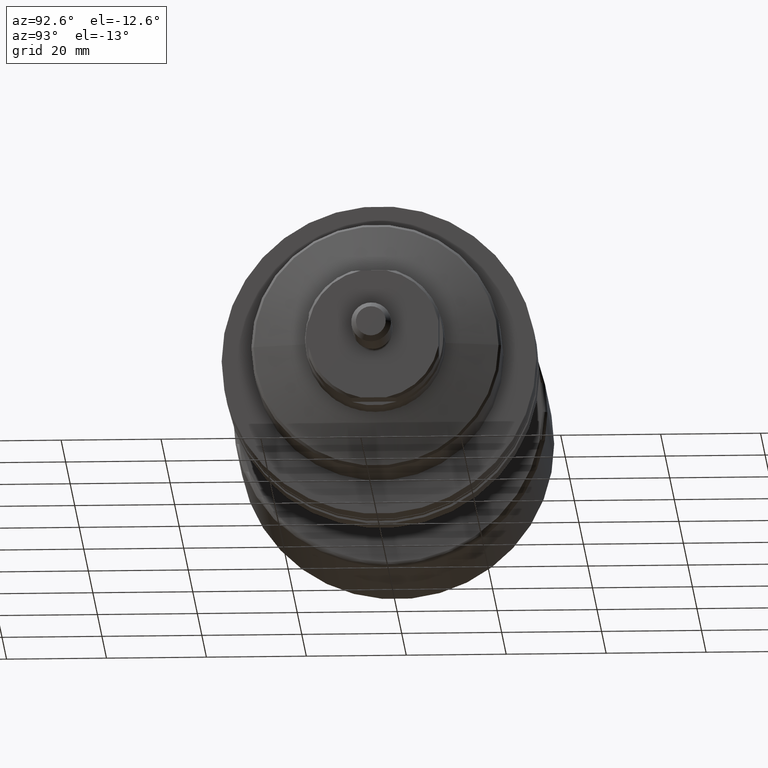
[diagram: clean part render]
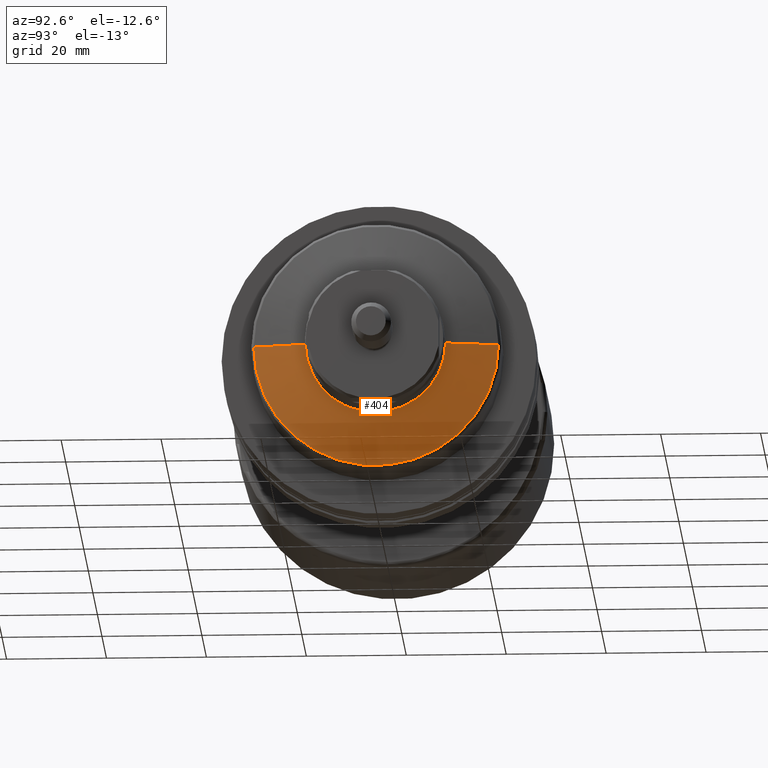
[diagram: same view with one face highlighted and labeled with its STEP entity id]
A machine part, auxiliary view. The second image highlights one B-rep face of the part: STEP entity #404.
In plain terms, the highlighted conical surface has half-angle 78.241 deg.
Its self-contained STEP definition (entity closure, byte-faithful):
#43 = CARTESIAN_POINT ( 'NONE',  ( -2.914285714286113826, 6.162975822039154730E-30, -14.00000000000000178 ) ) ;
#57 = VECTOR ( 'NONE', #1971, 1000.000000000000114 ) ;
#111 = ORIENTED_EDGE ( 'NONE', *, *, #904, .T. ) ;
#117 = CARTESIAN_POINT ( 'NONE',  ( -2.914285714286140472, 14.00000000000005329, 2.357445088358656335E-15 ) ) ;
#162 = EDGE_CURVE ( 'NONE', #785, #1737, #842, .T. ) ;
#219 = CONICAL_SURFACE ( 'NONE', #271, 24.50000000000002132, 1.365563936788661614 ) ;
#271 = AXIS2_PLACEMENT_3D ( 'NONE', #976, #1820, #945 ) ;
#294 = CARTESIAN_POINT ( 'NONE',  ( -5.100000000000664002, -24.49999999999997513, 0.000000000000000000 ) ) ;
#386 = ORIENTED_EDGE ( 'NONE', *, *, #162, .T. ) ;
#404 = ADVANCED_FACE ( 'NONE', ( #2501 ), #219, .T. ) ;
#406 = DIRECTION ( 'NONE',  ( 1.920586705545750655E-15, -1.000000000000000000, 0.000000000000000000 ) ) ;
#437 = EDGE_CURVE ( 'NONE', #2161, #2595, #2053, .T. ) ;
#469 = LINE ( 'NONE', #1122, #57 ) ;
#504 = ORIENTED_EDGE ( 'NONE', *, *, #1902, .T. ) ;
#785 = VERTEX_POINT ( 'NONE', #43 ) ;
#837 = DIRECTION ( 'NONE',  ( 1.000000000000000000, 1.931394410353556421E-15, -0.000000000000000000 ) ) ;
#842 = CIRCLE ( 'NONE', #2638, 14.00000000000000178 ) ;
#904 = EDGE_CURVE ( 'NONE', #1655, #2595, #1310, .T. ) ;
#945 = DIRECTION ( 'NONE',  ( 1.947138595484169474E-15, -1.000000000000000000, 0.000000000000000000 ) ) ;
#976 = CARTESIAN_POINT ( 'NONE',  ( -5.100000000000711964, 4.863255522461734884E-14, 0.000000000000000000 ) ) ;
#1000 = DIRECTION ( 'NONE',  ( -1.947138595484169474E-15, 1.000000000000000000, 0.000000000000000000 ) ) ;
#1122 = CARTESIAN_POINT ( 'NONE',  ( -5.100000000000664002, -24.49999999999997158, 0.000000000000000000 ) ) ;
#1215 = CARTESIAN_POINT ( 'NONE',  ( -5.100000000000711964, 4.863255522461734884E-14, 0.000000000000000000 ) ) ;
#1310 = CIRCLE ( 'NONE', #2106, 24.50000000000002132 ) ;
#1472 = DIRECTION ( 'NONE',  ( -1.000000000000000000, -1.931394410353556421E-15, 0.000000000000000000 ) ) ;
#1655 = VERTEX_POINT ( 'NONE', #294 ) ;
#1657 = CARTESIAN_POINT ( 'NONE',  ( -2.914285714286113826, 5.285403157867643656E-14, 0.000000000000000000 ) ) ;
#1737 = VERTEX_POINT ( 'NONE', #2637 ) ;
#1820 = DIRECTION ( 'NONE',  ( -1.000000000000000000, -1.931394410353556421E-15, 0.000000000000000000 ) ) ;
#1902 = EDGE_CURVE ( 'NONE', #2161, #785, #2739, .T. ) ;
#1971 = DIRECTION ( 'NONE',  ( -0.2037946783941911866, -0.9790136511092213389, 0.000000000000000000 ) ) ;
#2053 = LINE ( 'NONE', #2264, #2279 ) ;
#2068 = DIRECTION ( 'NONE',  ( -0.2037946783941950168, 0.9790136511092206728, 1.198945934152471440E-16 ) ) ;
#2078 = DIRECTION ( 'NONE',  ( 1.920586705545750655E-15, -1.000000000000000000, 0.000000000000000000 ) ) ;
#2084 = EDGE_LOOP ( 'NONE', ( #2605, #504, #386, #2369, #111 ) ) ;
#2106 = AXIS2_PLACEMENT_3D ( 'NONE', #1215, #837, #1000 ) ;
#2161 = VERTEX_POINT ( 'NONE', #117 ) ;
#2166 = CARTESIAN_POINT ( 'NONE',  ( -5.100000000000759037, 24.50000000000006750, 3.000384657911017441E-15 ) ) ;
#2264 = CARTESIAN_POINT ( 'NONE',  ( -5.100000000000759037, 24.50000000000007105, 3.000384657911017835E-15 ) ) ;
#2279 = VECTOR ( 'NONE', #2068, 999.9999999999998863 ) ;
#2319 = CARTESIAN_POINT ( 'NONE',  ( -2.914285714286113826, 5.285403157867643656E-14, 0.000000000000000000 ) ) ;
#2369 = ORIENTED_EDGE ( 'NONE', *, *, #2633, .T. ) ;
#2383 = AXIS2_PLACEMENT_3D ( 'NONE', #1657, #2704, #2078 ) ;
#2501 = FACE_OUTER_BOUND ( 'NONE', #2084, .T. ) ;
#2595 = VERTEX_POINT ( 'NONE', #2166 ) ;
#2605 = ORIENTED_EDGE ( 'NONE', *, *, #437, .F. ) ;
#2633 = EDGE_CURVE ( 'NONE', #1737, #1655, #469, .T. ) ;
#2637 = CARTESIAN_POINT ( 'NONE',  ( -2.914285714286086737, -13.99999999999995026, 0.000000000000000000 ) ) ;
#2638 = AXIS2_PLACEMENT_3D ( 'NONE', #2319, #1472, #406 ) ;
#2704 = DIRECTION ( 'NONE',  ( -1.000000000000000000, -1.931394410353556421E-15, 0.000000000000000000 ) ) ;
#2739 = CIRCLE ( 'NONE', #2383, 14.00000000000000178 ) ;